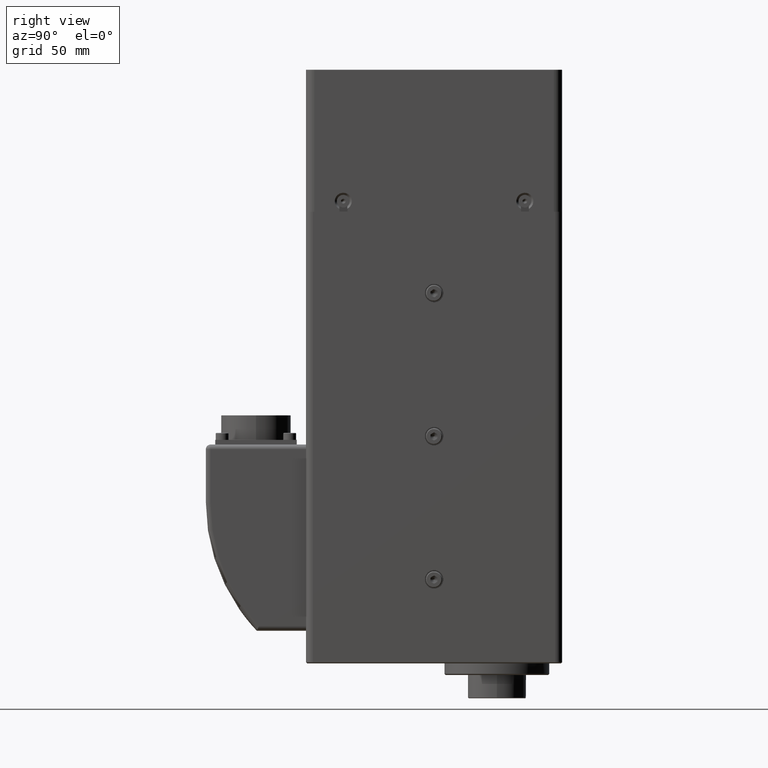
[diagram: clean part render]
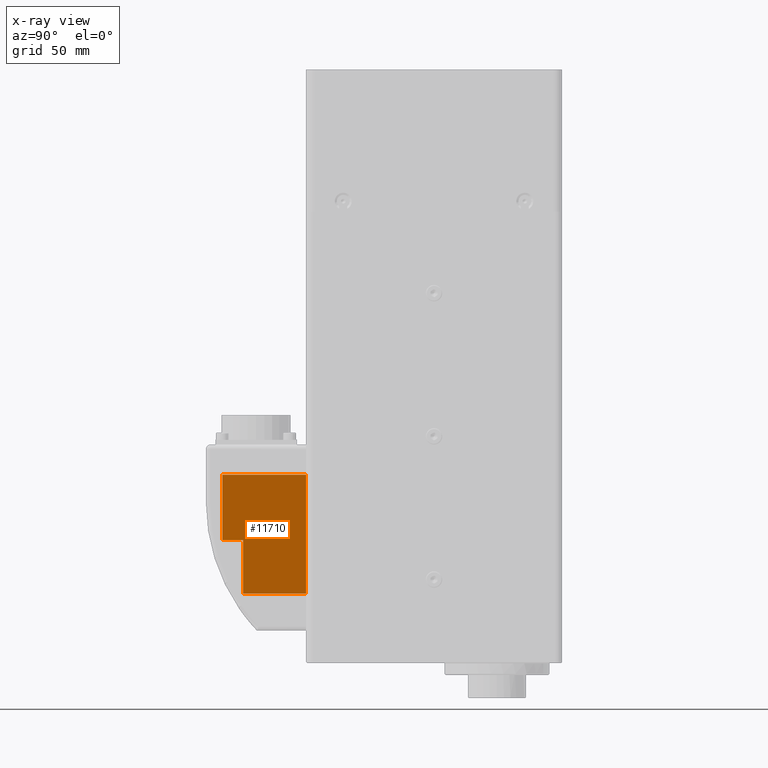
[diagram: x-ray — body ghosted, one internal face saturated and labeled with its STEP entity id]
A machine part, right view, then the same camera in x-ray: the body is ghosted and one INTERNAL B-rep face — a face not visible from any outside direction — is saturated and labeled: STEP entity #11710.
In plain terms, the highlighted planar face has unit normal (1, -0, -0).
Its self-contained STEP definition (entity closure, byte-faithful):
#1589=FACE_OUTER_BOUND('',#2364,.T.);
#2364=EDGE_LOOP('',(#9122,#9123,#9124,#9125,#9126,#9127,#9128));
#2741=LINE('',#16782,#3623);
#2752=LINE('',#16820,#3634);
#3258=LINE('',#19114,#4140);
#3259=LINE('',#19127,#4141);
#3267=LINE('',#19145,#4149);
#3271=LINE('',#19159,#4153);
#3272=LINE('',#19169,#4154);
#3623=VECTOR('',#13483,10.);
#3634=VECTOR('',#13518,10.);
#4140=VECTOR('',#15386,10.);
#4141=VECTOR('',#15389,10.);
#4149=VECTOR('',#15403,10.);
#4153=VECTOR('',#15419,10.);
#4154=VECTOR('',#15422,10.);
#4495=VERTEX_POINT('',#16779);
#4496=VERTEX_POINT('',#16781);
#4510=VERTEX_POINT('',#16817);
#4511=VERTEX_POINT('',#16819);
#5104=VERTEX_POINT('',#19112);
#5106=VERTEX_POINT('',#19117);
#5107=VERTEX_POINT('',#19126);
#5583=EDGE_CURVE('',#4495,#4496,#2741,.T.);
#5602=EDGE_CURVE('',#4511,#4510,#2752,.T.);
#6501=EDGE_CURVE('',#5104,#4510,#3258,.T.);
#6503=EDGE_CURVE('',#5106,#5107,#3259,.T.);
#6513=EDGE_CURVE('',#5104,#5107,#3267,.T.);
#6520=EDGE_CURVE('',#4511,#4495,#3271,.T.);
#6522=EDGE_CURVE('',#4496,#5106,#3272,.T.);
#9122=ORIENTED_EDGE('',*,*,#6520,.F.);
#9123=ORIENTED_EDGE('',*,*,#5602,.T.);
#9124=ORIENTED_EDGE('',*,*,#6501,.F.);
#9125=ORIENTED_EDGE('',*,*,#6513,.T.);
#9126=ORIENTED_EDGE('',*,*,#6503,.F.);
#9127=ORIENTED_EDGE('',*,*,#6522,.F.);
#9128=ORIENTED_EDGE('',*,*,#5583,.F.);
#10477=PLANE('',#12806);
#11710=ADVANCED_FACE('',(#1589),#10477,.F.);
#12806=AXIS2_PLACEMENT_3D('',#19277,#15458,#15459);
#13483=DIRECTION('',(1.52428161167798E-16,-1.97215226305253E-31,1.));
#13518=DIRECTION('',(1.52428161167798E-16,-1.97215226305253E-31,1.));
#15386=DIRECTION('',(3.4378694260548E-32,1.,6.48060756873851E-17));
#15389=DIRECTION('',(-2.18431939546395E-32,-1.,1.74326668774414E-17));
#15403=DIRECTION('',(1.52428161167798E-16,-1.97215226305253E-31,1.));
#15419=DIRECTION('',(2.18431939546395E-32,1.,-1.74326668774414E-17));
#15422=DIRECTION('',(-2.18431939546395E-32,-1.,1.74326668774414E-17));
#15458=DIRECTION('center_axis',(1.,-2.45004233110187E-32,-1.52428161167798E-16));
#15459=DIRECTION('ref_axis',(1.52428161167798E-16,-1.97215226305253E-31,
1.));
#16779=CARTESIAN_POINT('',(18.,-82.,16.));
#16781=CARTESIAN_POINT('',(18.,-82.,67.));
#16782=CARTESIAN_POINT('',(18.,-82.,5.49999999999997));
#16817=CARTESIAN_POINT('',(18.,-109.,39.));
#16819=CARTESIAN_POINT('',(18.,-109.,16.));
#16820=CARTESIAN_POINT('',(18.,-109.,72.));
#19112=CARTESIAN_POINT('',(18.,-118.,39.));
#19114=CARTESIAN_POINT('',(18.,-82.,39.));
#19117=CARTESIAN_POINT('',(18.,-103.5,67.));
#19126=CARTESIAN_POINT('',(18.,-118.,67.));
#19127=CARTESIAN_POINT('',(18.,-82.,67.));
#19145=CARTESIAN_POINT('',(18.,-118.,72.));
#19159=CARTESIAN_POINT('',(18.,-82.,16.));
#19169=CARTESIAN_POINT('',(18.,-82.,67.));
#19277=CARTESIAN_POINT('Origin',(18.,-82.,11.));